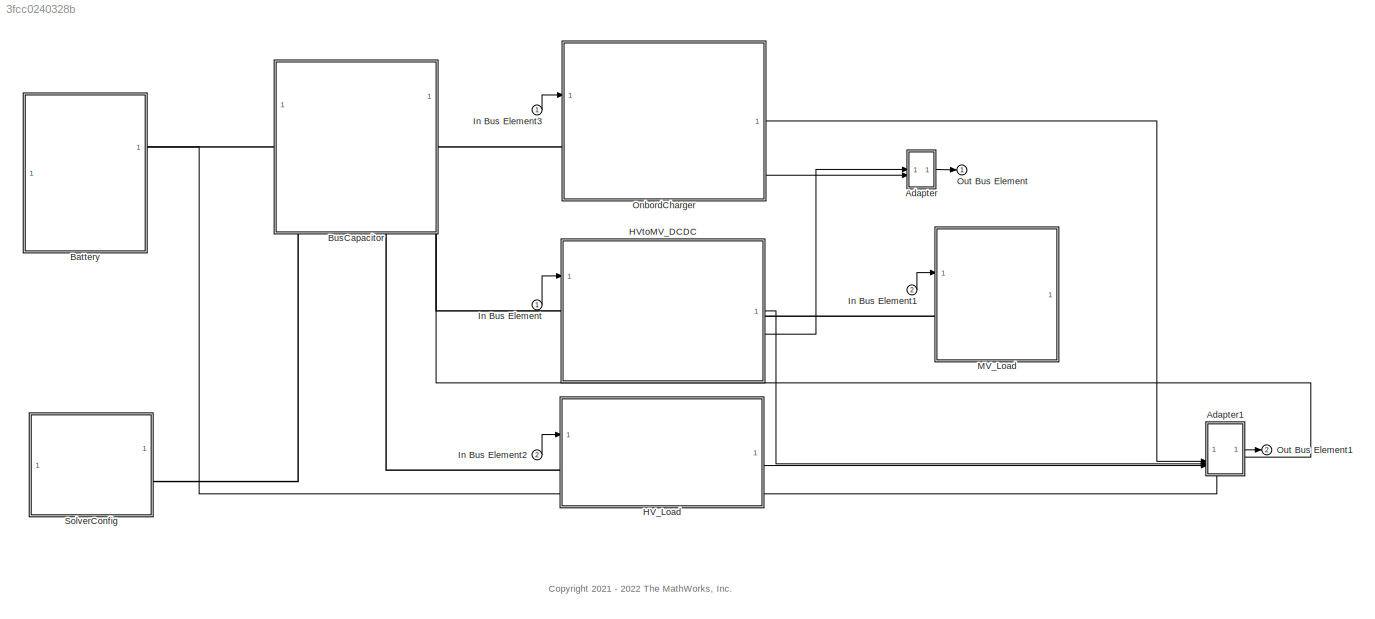
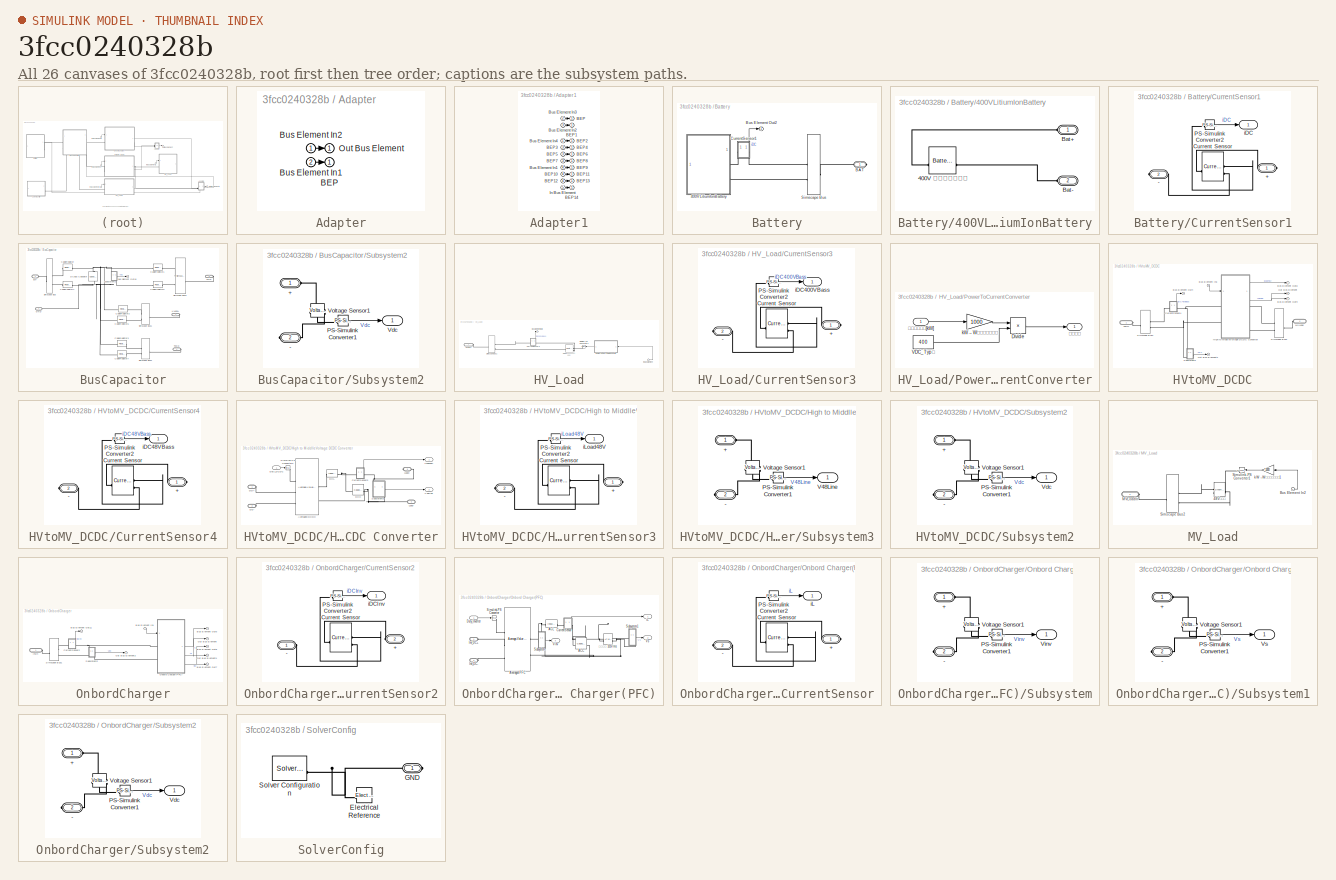
[diagram: thumbnail index - all 26 canvases of the model, root first then tree order]
MODEL slx_3fcc0240328b
KIND model
BLOCK [SubSystem] Adapter
  PortSchema = {"entries":[{"content":{"margin":10,"minimumSpacing":15,"sides":[{"content":{"connectorIds":["In2","In1"]},"type":"ConnectorPlacement.EquallySpacedRectSide","uuid":"68f5454e-c2f0-4736-99c3-02080df13840"},{"content":{"connectorIds":["Out1"],"side":"RIGHT"},"type":"ConnectorPlacement.EquallySpacedRectSide","uuid":"5ee879a6-3050-43f8-b648-386fe489b578"},{"content":{"connectorIds":[],"side":"TOP"},"ty...<+278ch>
BLOCK [Outport] Adapter/BEP
BLOCK [Inport] Adapter/Bus Element In1
  Port = 2
BLOCK [Inport] Adapter/Bus Element In2
BLOCK [Outport] Adapter/Out Bus Element
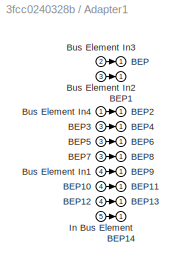
BLOCK [SubSystem] Adapter1
  PortSchema = {"entries":[{"content":{"margin":10,"minimumSpacing":15,"sides":[{"content":{"connectorIds":["In3","In4","In5"]},"type":"ConnectorPlacement.EquallySpacedRectSide","uuid":"68f5454e-c2f0-4736-99c3-02080df13840"},{"content":{"connectorIds":["Out1"],"side":"RIGHT"},"type":"ConnectorPlacement.EquallySpacedRectSide","uuid":"5ee879a6-3050-43f8-b648-386fe489b578"},{"content":{"connectorIds":[],"side":"TOP...<+439ch>
BLOCK [Outport] Adapter1/BEP
BLOCK [Outport] Adapter1/BEP1
BLOCK [Inport] Adapter1/BEP10
  Port = 4
BLOCK [Outport] Adapter1/BEP11
BLOCK [Inport] Adapter1/BEP12
  Port = 4
BLOCK [Outport] Adapter1/BEP13
BLOCK [Outport] Adapter1/BEP14
BLOCK [Outport] Adapter1/BEP2
BLOCK [Inport] Adapter1/BEP3
  Port = 3
BLOCK [Outport] Adapter1/BEP4
BLOCK [Inport] Adapter1/BEP5
  Port = 3
BLOCK [Outport] Adapter1/BEP6
BLOCK [Inport] Adapter1/BEP7
  Port = 3
BLOCK [Outport] Adapter1/BEP8
BLOCK [Outport] Adapter1/BEP9
BLOCK [Inport] Adapter1/Bus Element In1
  Port = 4
BLOCK [Inport] Adapter1/Bus Element In2
  Port = 3
BLOCK [Inport] Adapter1/Bus Element In3
  Port = 2
BLOCK [Inport] Adapter1/Bus Element In4
BLOCK [Inport] Adapter1/In Bus Element
  Port = 5
BLOCK [SubSystem] Battery
  PortSchema = {"entries":[{"content":{"headerSize":26,"margin":15,"minimumSpacing":25,"sides":[{"content":{"connectorIds":[]},"type":"ConnectorPlacement.EquallySpacedRectSide","uuid":"bc9bb9ba-2a95-4d32-9fa4-7976113ef647"},{"content":{"connectorIds":["RConn1","Out1"],"side":"RIGHT"},"type":"ConnectorPlacement.EquallySpacedRectSide","uuid":"964ff6e2-b516-444b-80c9-2869b54c1800"},{"content":{"connectorIds":[],"si...<+292ch>
BLOCK [SubSystem] Battery/400VLitiumIonBattery
BLOCK [Reference] Battery/400VLitiumIonBattery/400V 理想特性蓄電池  REF=batteryecm_lib/Battery
  NameLocation = left
  SourceBlock = batteryecm_lib/Battery
  SourceType = Battery
BLOCK [PMIOPort] Battery/400VLitiumIonBattery/Bat+
  Side = Right
BLOCK [PMIOPort] Battery/400VLitiumIonBattery/Bat-
  Port = 2
  Side = Right
BLOCK [PMIOPort] Battery/BAT
  ConnectionType = Bus: HV_PowerLine
  Side = Right
BLOCK [Outport] Battery/Bus Element Out2
BLOCK [SubSystem] Battery/CurrentSensor1
  PortSchema = {"entries":[{"content":{"sides":[{"content":{"connectorIds":["LConn1"]},"type":"ConnectorPlacement.EquallySpacedRectSide","uuid":"7286f59e-cee0-499d-832c-cf6f33a1b017"},{"content":{"connectorIds":["RConn1"],"side":"RIGHT"},"type":"ConnectorPlacement.EquallySpacedRectSide","uuid":"6a983281-a6bc-4a57-a5ba-c4da9a8828f4"},{"content":{"connectorIds":["Out1"],"side":"TOP"},"type":"ConnectorPlacement.Equ...<+251ch>  <repeated x6 — deduplicated; at blocks: CurrentSensor1, CurrentSensor3, CurrentSensor4, CurrentSensor2, CurrentSensor>
BLOCK [PMIOPort] Battery/CurrentSensor1/+
  Side = Left
BLOCK [PMIOPort] Battery/CurrentSensor1/-
  Port = 2
  Side = Right
BLOCK [Reference] Battery/CurrentSensor1/Current Sensor  REF=fl_lib/Electrical/Electrical Sensors/Current Sensor
  NameLocation = top
  SourceBlock = fl_lib/Electrical/Electrical Sensors/Current Sensor
  SourceType = Current Sensor
BLOCK [Reference] Battery/CurrentSensor1/PS-Simulink Converter2  REF=nesl_utility/PS-Simulink
Converter
  SourceBlock = nesl_utility/PS-Simulink\nConverter
  SourceType = PS-Simulink\nConverter
BLOCK [Outport] Battery/CurrentSensor1/iDC
BLOCK [SimscapeBus] Battery/Simscape Bus
  ConnectionType = Bus: HV_PowerLine
  HierarchyStrings = P;N
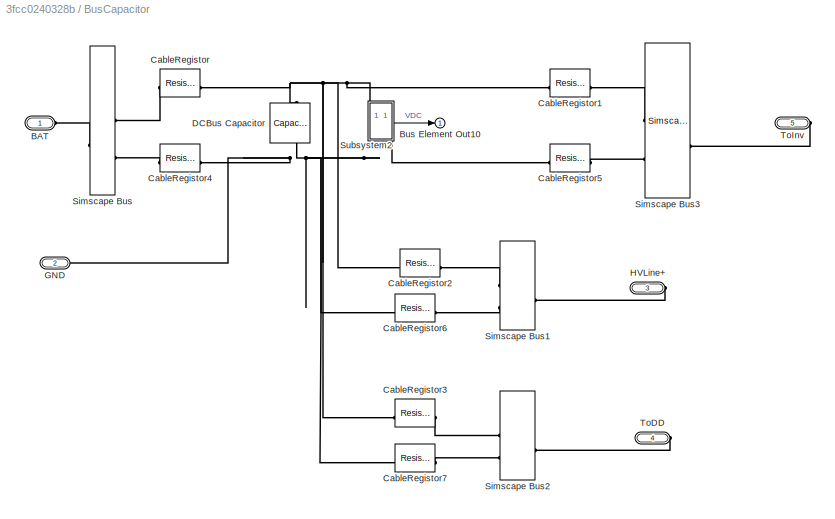
BLOCK [SubSystem] BusCapacitor
  PortSchema = {"entries":[{"content":{"headerSize":26,"margin":15,"minimumSpacing":25,"sides":[{"content":{"connectorIds":["LConn1"]},"type":"ConnectorPlacement.EquallySpacedRectSide","uuid":"bc9bb9ba-2a95-4d32-9fa4-7976113ef647"},{"content":{"connectorIds":["RConn3"],"side":"RIGHT"},"type":"ConnectorPlacement.EquallySpacedRectSide","uuid":"964ff6e2-b516-444b-80c9-2869b54c1800"},{"content":{"connectorIds":[],"s...<+470ch>
BLOCK [PMIOPort] BusCapacitor/BAT
  ConnectionType = Bus: HV_PowerLine
  Side = Left
BLOCK [Outport] BusCapacitor/Bus Element Out10
BLOCK [Reference] BusCapacitor/CableRegistor  REF=fl_lib/Electrical/Electrical Elements/Resistor
  NameLocation = top
  SourceBlock = fl_lib/Electrical/Electrical Elements/Resistor
  SourceType = Resistor
BLOCK [Reference] BusCapacitor/CableRegistor1  REF=fl_lib/Electrical/Electrical Elements/Resistor
  NameLocation = top
  SourceBlock = fl_lib/Electrical/Electrical Elements/Resistor
  SourceType = Resistor
BLOCK [Reference] BusCapacitor/CableRegistor2  REF=fl_lib/Electrical/Electrical Elements/Resistor
  NameLocation = top
  SourceBlock = fl_lib/Electrical/Electrical Elements/Resistor
  SourceType = Resistor
BLOCK [Reference] BusCapacitor/CableRegistor3  REF=fl_lib/Electrical/Electrical Elements/Resistor
  NameLocation = top
  SourceBlock = fl_lib/Electrical/Electrical Elements/Resistor
  SourceType = Resistor
BLOCK [Reference] BusCapacitor/CableRegistor4  REF=fl_lib/Electrical/Electrical Elements/Resistor
  NameLocation = top
  SourceBlock = fl_lib/Electrical/Electrical Elements/Resistor
  SourceType = Resistor
BLOCK [Reference] BusCapacitor/CableRegistor5  REF=fl_lib/Electrical/Electrical Elements/Resistor
  NameLocation = top
  SourceBlock = fl_lib/Electrical/Electrical Elements/Resistor
  SourceType = Resistor
BLOCK [Reference] BusCapacitor/CableRegistor6  REF=fl_lib/Electrical/Electrical Elements/Resistor
  NameLocation = top
  SourceBlock = fl_lib/Electrical/Electrical Elements/Resistor
  SourceType = Resistor
BLOCK [Reference] BusCapacitor/CableRegistor7  REF=fl_lib/Electrical/Electrical Elements/Resistor
  NameLocation = top
  SourceBlock = fl_lib/Electrical/Electrical Elements/Resistor
  SourceType = Resistor
BLOCK [Reference] BusCapacitor/DCBus Capacitor  REF=ee_lib/Passive/Capacitor
  NameLocation = left
  SourceBlock = ee_lib/Passive/Capacitor
  SourceType = Capacitor
BLOCK [PMIOPort] BusCapacitor/GND
  Port = 2
  Side = Left
BLOCK [PMIOPort] BusCapacitor/HVLine+
  ConnectionType = Bus: HV_PowerLine
  Port = 3
  Side = Right
BLOCK [SimscapeBus] BusCapacitor/Simscape Bus
  ConnectionType = Bus: HV_PowerLine
  HierarchyStrings = P;N
  NameLocation = top
BLOCK [SimscapeBus] BusCapacitor/Simscape Bus1
  ConnectionType = Bus: HV_PowerLine
  HierarchyStrings = P;N
BLOCK [SimscapeBus] BusCapacitor/Simscape Bus2
  ConnectionType = Bus: HV_PowerLine
  HierarchyStrings = P;N
BLOCK [SimscapeBus] BusCapacitor/Simscape Bus3
  ConnectionType = Bus: HV_PowerLine
  HierarchyStrings = P;N
BLOCK [SubSystem] BusCapacitor/Subsystem2
  PortSchema = {"entries":[{"content":{"sides":[{"content":{"connectorIds":[]},"type":"ConnectorPlacement.EquallySpacedRectSide","uuid":"7286f59e-cee0-499d-832c-cf6f33a1b017"},{"content":{"connectorIds":["Out1"],"side":"RIGHT"},"type":"ConnectorPlacement.EquallySpacedRectSide","uuid":"6a983281-a6bc-4a57-a5ba-c4da9a8828f4"},{"content":{"connectorIds":["LConn1"],"side":"TOP"},"type":"ConnectorPlacement.EquallySpac...<+395ch>  <repeated x6 — deduplicated; at blocks: Subsystem2, Subsystem3, Subsystem, Subsystem1>
BLOCK [PMIOPort] BusCapacitor/Subsystem2/+
  Side = Left
BLOCK [PMIOPort] BusCapacitor/Subsystem2/-
  NameLocation = top
  Port = 2
  Side = Right
BLOCK [Reference] BusCapacitor/Subsystem2/PS-Simulink Converter1  REF=nesl_utility/PS-Simulink
Converter
  SourceBlock = nesl_utility/PS-Simulink\nConverter
  SourceType = PS-Simulink\nConverter
BLOCK [Outport] BusCapacitor/Subsystem2/Vdc
BLOCK [Reference] BusCapacitor/Subsystem2/Voltage Sensor1  REF=fl_lib/Electrical/Electrical Sensors/Voltage Sensor
  NameLocation = right
  SourceBlock = fl_lib/Electrical/Electrical Sensors/Voltage Sensor
  SourceType = Voltage Sensor
BLOCK [PMIOPort] BusCapacitor/ToDD
  ConnectionType = Bus: HV_PowerLine
  Port = 4
  Side = Right
BLOCK [PMIOPort] BusCapacitor/ToInv
  ConnectionType = Bus: HV_PowerLine
  Port = 5
  Side = Right
BLOCK [SubSystem] HV_Load
  PortSchema = {"entries":[{"content":{"headerSize":26,"margin":15,"minimumSpacing":25,"sides":[{"content":{"connectorIds":["In1","LConn1"]},"type":"ConnectorPlacement.EquallySpacedRectSide","uuid":"bc9bb9ba-2a95-4d32-9fa4-7976113ef647"},{"content":{"connectorIds":["Out1"],"side":"RIGHT"},"type":"ConnectorPlacement.EquallySpacedRectSide","uuid":"964ff6e2-b516-444b-80c9-2869b54c1800"},{"content":{"connectorIds":[...<+297ch>
BLOCK [Reference] HV_Load/400V系負荷を模擬する 電流源  REF=fl_lib/Electrical/Electrical Sources/Controlled Current
Source
  NameLocation = left
  SourceBlock = fl_lib/Electrical/Electrical Sources/Controlled Current\nSource
  SourceType = Controlled Current\nSource
BLOCK [Outport] HV_Load/Bus Element Out3
BLOCK [SubSystem] HV_Load/CurrentSensor3
BLOCK [PMIOPort] HV_Load/CurrentSensor3/+
  Side = Left
BLOCK [PMIOPort] HV_Load/CurrentSensor3/-
  Port = 2
  Side = Right
BLOCK [Reference] HV_Load/CurrentSensor3/Current Sensor  REF=fl_lib/Electrical/Electrical Sensors/Current Sensor
  NameLocation = top
  SourceBlock = fl_lib/Electrical/Electrical Sensors/Current Sensor
  SourceType = Current Sensor
BLOCK [Reference] HV_Load/CurrentSensor3/PS-Simulink Converter2  REF=nesl_utility/PS-Simulink
Converter
  SourceBlock = nesl_utility/PS-Simulink\nConverter
  SourceType = PS-Simulink\nConverter
BLOCK [Outport] HV_Load/CurrentSensor3/iDC400VBass
BLOCK [PMIOPort] HV_Load/HVLine+
  ConnectionType = Bus: HV_PowerLine
  Side = Left
BLOCK [Inport] HV_Load/In Bus Element
BLOCK [SubSystem] HV_Load/PowerToCurrentConverter
  NameLocation = top
BLOCK [Product] HV_Load/PowerToCurrentConverter/Divide
  Inputs = */
BLOCK [Constant] HV_Load/PowerToCurrentConverter/VDC_Typ値
  Value = 400
BLOCK [Gain] HV_Load/PowerToCurrentConverter/kW→W単位変換ゲイン
  Gain = 1000
  NameLocation = top
BLOCK [Inport] HV_Load/PowerToCurrentConverter/消費負荷電力[kW]
  NameLocation = top
BLOCK [Outport] HV_Load/PowerToCurrentConverter/負荷電流
  NameLocation = top
BLOCK [SimscapeBus] HV_Load/Simscape Bus1
  ConnectionType = Bus: HV_PowerLine
  HierarchyStrings = P;N
  NameLocation = top
BLOCK [Reference] HV_Load/Simulink-PS Converter2  REF=nesl_utility/Simulink-PS
Converter
  SourceBlock = nesl_utility/Simulink-PS\nConverter
  SourceType = Simulink-PS\nConverter
BLOCK [SubSystem] HVtoMV_DCDC
  PortSchema = {"entries":[{"content":{"headerSize":26,"margin":15,"minimumSpacing":25,"sides":[{"content":{"connectorIds":["In1","LConn1"]},"type":"ConnectorPlacement.EquallySpacedRectSide","uuid":"bc9bb9ba-2a95-4d32-9fa4-7976113ef647"},{"content":{"connectorIds":["Out2","LConn2","Out1"],"side":"RIGHT"},"type":"ConnectorPlacement.EquallySpacedRectSide","uuid":"964ff6e2-b516-444b-80c9-2869b54c1800"},{"content":{...<+313ch>
BLOCK [Inport] HVtoMV_DCDC/Bus Element In3
BLOCK [Outport] HVtoMV_DCDC/Bus Element Out4
BLOCK [Outport] HVtoMV_DCDC/Bus Element Out8
BLOCK [Outport] HVtoMV_DCDC/Bus Element Out9
BLOCK [SubSystem] HVtoMV_DCDC/CurrentSensor4
BLOCK [PMIOPort] HVtoMV_DCDC/CurrentSensor4/+
  Side = Left
BLOCK [PMIOPort] HVtoMV_DCDC/CurrentSensor4/-
  Port = 2
  Side = Right
BLOCK [Reference] HVtoMV_DCDC/CurrentSensor4/Current Sensor  REF=fl_lib/Electrical/Electrical Sensors/Current Sensor
  NameLocation = top
  SourceBlock = fl_lib/Electrical/Electrical Sensors/Current Sensor
  SourceType = Current Sensor
BLOCK [Reference] HVtoMV_DCDC/CurrentSensor4/PS-Simulink Converter2  REF=nesl_utility/PS-Simulink
Converter
  SourceBlock = nesl_utility/PS-Simulink\nConverter
  SourceType = PS-Simulink\nConverter
BLOCK [Outport] HVtoMV_DCDC/CurrentSensor4/iDC48VBass
BLOCK [SubSystem] HVtoMV_DCDC/High to MiddlleVoltage DCDC Converter
BLOCK [Reference] HVtoMV_DCDC/High to MiddlleVoltage DCDC Converter/Averaged DCDC  REF=ee_lib/Semiconductors &
Converters/Converters/Average-Value
Chopper
  SourceBlock = ee_lib/Semiconductors &\nConverters/Converters/Average-Value\nChopper
  SourceType = Average-Value\nChopper
BLOCK [SubSystem] HVtoMV_DCDC/High to MiddlleVoltage DCDC Converter/CurrentSensor3
BLOCK [PMIOPort] HVtoMV_DCDC/High to MiddlleVoltage DCDC Converter/CurrentSensor3/+
  Side = Left
BLOCK [PMIOPort] HVtoMV_DCDC/High to MiddlleVoltage DCDC Converter/CurrentSensor3/-
  Port = 2
  Side = Right
BLOCK [Reference] HVtoMV_DCDC/High to MiddlleVoltage DCDC Converter/CurrentSensor3/Current Sensor  REF=fl_lib/Electrical/Electrical Sensors/Current Sensor
  NameLocation = top
  SourceBlock = fl_lib/Electrical/Electrical Sensors/Current Sensor
  SourceType = Current Sensor
BLOCK [Reference] HVtoMV_DCDC/High to MiddlleVoltage DCDC Converter/CurrentSensor3/PS-Simulink Converter2  REF=nesl_utility/PS-Simulink
Converter
  SourceBlock = nesl_utility/PS-Simulink\nConverter
  SourceType = PS-Simulink\nConverter
BLOCK [Outport] HVtoMV_DCDC/High to MiddlleVoltage DCDC Converter/CurrentSensor3/iLoad48V
BLOCK [Reference] HVtoMV_DCDC/High to MiddlleVoltage DCDC Converter/DCC  REF=ee_lib/Passive/Capacitor
  NameLocation = left
  SourceBlock = ee_lib/Passive/Capacitor
  SourceType = Capacitor
BLOCK [Reference] HVtoMV_DCDC/High to MiddlleVoltage DCDC Converter/DCL  REF=ee_lib/Passive/Inductor
  SourceBlock = ee_lib/Passive/Inductor
  SourceType = Inductor
BLOCK [PMIOPort] HVtoMV_DCDC/High to MiddlleVoltage DCDC Converter/DD+
  Side = Left
BLOCK [PMIOPort] HVtoMV_DCDC/High to MiddlleVoltage DCDC Converter/DD-
  Port = 2
  Side = Left
BLOCK [Inport] HVtoMV_DCDC/High to MiddlleVoltage DCDC Converter/Duty_DCDC
BLOCK [PMIOPort] HVtoMV_DCDC/High to MiddlleVoltage DCDC Converter/Load+
  NameLocation = top
  Port = 3
  Side = Right
BLOCK [PMIOPort] HVtoMV_DCDC/High to MiddlleVoltage DCDC Converter/Load-
  NameLocation = top
  Port = 4
  Side = Right
BLOCK [Reference] HVtoMV_DCDC/High to MiddlleVoltage DCDC Converter/Simulink-PS Converter2  REF=nesl_utility/Simulink-PS
Converter
  SourceBlock = nesl_utility/Simulink-PS\nConverter
  SourceType = Simulink-PS\nConverter
BLOCK [SubSystem] HVtoMV_DCDC/High to MiddlleVoltage DCDC Converter/Subsystem3
BLOCK [PMIOPort] HVtoMV_DCDC/High to MiddlleVoltage DCDC Converter/Subsystem3/+
  Side = Left
BLOCK [PMIOPort] HVtoMV_DCDC/High to MiddlleVoltage DCDC Converter/Subsystem3/-
  NameLocation = top
  Port = 2
  Side = Right
BLOCK [Reference] HVtoMV_DCDC/High to MiddlleVoltage DCDC Converter/Subsystem3/PS-Simulink Converter1  REF=nesl_utility/PS-Simulink
Converter
  SourceBlock = nesl_utility/PS-Simulink\nConverter
  SourceType = PS-Simulink\nConverter
BLOCK [Outport] HVtoMV_DCDC/High to MiddlleVoltage DCDC Converter/Subsystem3/V48Line
BLOCK [Reference] HVtoMV_DCDC/High to MiddlleVoltage DCDC Converter/Subsystem3/Voltage Sensor1  REF=fl_lib/Electrical/Electrical Sensors/Voltage Sensor
  NameLocation = right
  SourceBlock = fl_lib/Electrical/Electrical Sensors/Voltage Sensor
  SourceType = Voltage Sensor
BLOCK [Outport] HVtoMV_DCDC/High to MiddlleVoltage DCDC Converter/V48Line
  Port = 2
BLOCK [Outport] HVtoMV_DCDC/High to MiddlleVoltage DCDC Converter/iLoad48V
BLOCK [PMIOPort] HVtoMV_DCDC/MVLoad
  ConnectionType = Bus: MV_PowerLine
  NameLocation = top
  Port = 2
  Side = Left
BLOCK [Outport] HVtoMV_DCDC/Out Bus Element
  Port = 2
BLOCK [Outport] HVtoMV_DCDC/Out Bus Element1
  Port = 2
BLOCK [SimscapeBus] HVtoMV_DCDC/Simscape Bus1
  ConnectionType = Bus: HV_PowerLine
  HierarchyStrings = P;N
  NameLocation = top
BLOCK [SimscapeBus] HVtoMV_DCDC/Simscape Bus2
  ConnectionType = Bus: MV_PowerLine
  HierarchyStrings = P;N
BLOCK [SubSystem] HVtoMV_DCDC/Subsystem2
BLOCK [PMIOPort] HVtoMV_DCDC/Subsystem2/+
  Side = Left
BLOCK [PMIOPort] HVtoMV_DCDC/Subsystem2/-
  NameLocation = top
  Port = 2
  Side = Right
BLOCK [Reference] HVtoMV_DCDC/Subsystem2/PS-Simulink Converter1  REF=nesl_utility/PS-Simulink
Converter
  SourceBlock = nesl_utility/PS-Simulink\nConverter
  SourceType = PS-Simulink\nConverter
BLOCK [Outport] HVtoMV_DCDC/Subsystem2/Vdc
BLOCK [Reference] HVtoMV_DCDC/Subsystem2/Voltage Sensor1  REF=fl_lib/Electrical/Electrical Sensors/Voltage Sensor
  NameLocation = right
  SourceBlock = fl_lib/Electrical/Electrical Sensors/Voltage Sensor
  SourceType = Voltage Sensor
BLOCK [PMIOPort] HVtoMV_DCDC/ToDD
  ConnectionType = Bus: HV_PowerLine
  Side = Left
BLOCK [Inport] In Bus Element
BLOCK [Inport] In Bus Element1
  Port = 2
BLOCK [Inport] In Bus Element2
  Port = 2
BLOCK [Inport] In Bus Element3
BLOCK [SubSystem] MV_Load
  PortSchema = {"entries":[{"content":{"headerSize":26,"margin":15,"minimumSpacing":25,"sides":[{"content":{"connectorIds":["In1","LConn1"]},"type":"ConnectorPlacement.EquallySpacedRectSide","uuid":"bc9bb9ba-2a95-4d32-9fa4-7976113ef647"},{"content":{"connectorIds":[],"side":"RIGHT"},"type":"ConnectorPlacement.EquallySpacedRectSide","uuid":"964ff6e2-b516-444b-80c9-2869b54c1800"},{"content":{"connectorIds":[],"sid...<+291ch>
BLOCK [Reference] MV_Load/48V系負荷  REF=ee_lib/Passive/Dynamic Load
  SourceBlock = ee_lib/Passive/Dynamic Load
  SourceType = Dynamic Load
BLOCK [Inport] MV_Load/Bus Element In2
BLOCK [PMIOPort] MV_Load/MVLoadIn
  ConnectionType = Bus: MV_PowerLine
  Side = Left
BLOCK [SimscapeBus] MV_Load/Simscape Bus2
  ConnectionType = Bus: MV_PowerLine
  HierarchyStrings = P;N
  NameLocation = top
BLOCK [Reference] MV_Load/Simulink-PS Converter1  REF=nesl_utility/Simulink-PS
Converter
  SourceBlock = nesl_utility/Simulink-PS\nConverter
  SourceType = Simulink-PS\nConverter
BLOCK [Gain] MV_Load/kW→W単位変換ゲイン1
  Gain = 1000
  NameLocation = top
BLOCK [SubSystem] OnbordCharger
  PortSchema = {"entries":[{"content":{"headerSize":26,"margin":15,"minimumSpacing":25,"sides":[{"content":{"connectorIds":["In1","LConn1"]},"type":"ConnectorPlacement.EquallySpacedRectSide","uuid":"bc9bb9ba-2a95-4d32-9fa4-7976113ef647"},{"content":{"connectorIds":["Out1","Out2"],"side":"RIGHT"},"type":"ConnectorPlacement.EquallySpacedRectSide","uuid":"964ff6e2-b516-444b-80c9-2869b54c1800"},{"content":{"connecto...<+304ch>
BLOCK [Inport] OnbordCharger/Bus Element In1
BLOCK [Outport] OnbordCharger/Bus Element Out11
BLOCK [Outport] OnbordCharger/Bus Element Out5
BLOCK [Outport] OnbordCharger/Bus Element Out6
BLOCK [Outport] OnbordCharger/Bus Element Out7
BLOCK [SubSystem] OnbordCharger/CurrentSensor2
BLOCK [PMIOPort] OnbordCharger/CurrentSensor2/+
  Port = 2
  Side = Right
BLOCK [PMIOPort] OnbordCharger/CurrentSensor2/-
  Side = Left
BLOCK [Reference] OnbordCharger/CurrentSensor2/Current Sensor  REF=fl_lib/Electrical/Electrical Sensors/Current Sensor
  NameLocation = top
  SourceBlock = fl_lib/Electrical/Electrical Sensors/Current Sensor
  SourceType = Current Sensor
BLOCK [Reference] OnbordCharger/CurrentSensor2/PS-Simulink Converter2  REF=nesl_utility/PS-Simulink
Converter
  SourceBlock = nesl_utility/PS-Simulink\nConverter
  SourceType = PS-Simulink\nConverter
BLOCK [Outport] OnbordCharger/CurrentSensor2/iDCInv
BLOCK [PMIOPort] OnbordCharger/InvIn
  ConnectionType = Bus: HV_PowerLine
  Side = Left
BLOCK [SubSystem] OnbordCharger/Onbord Charger(PFC)
BLOCK [Reference] OnbordCharger/Onbord Charger(PFC)/ACC  REF=ee_lib/Passive/Capacitor
  NameLocation = right
  SourceBlock = ee_lib/Passive/Capacitor
  SourceType = Capacitor
BLOCK [Reference] OnbordCharger/Onbord Charger(PFC)/ACL  REF=ee_lib/Passive/Inductor
  SourceBlock = ee_lib/Passive/Inductor
  SourceType = Inductor
BLOCK [Reference] OnbordCharger/Onbord Charger(PFC)/Averaged PFC  REF=ee_lib/Semiconductors &
Converters/Converters/Average-Value
Chopper
  SourceBlock = ee_lib/Semiconductors &\nConverters/Converters/Average-Value\nChopper
  SourceType = Average-Value\nChopper
BLOCK [SubSystem] OnbordCharger/Onbord Charger(PFC)/CurrentSensor
BLOCK [PMIOPort] OnbordCharger/Onbord Charger(PFC)/CurrentSensor/+
  Side = Left
BLOCK [PMIOPort] OnbordCharger/Onbord Charger(PFC)/CurrentSensor/-
  Port = 2
  Side = Right
BLOCK [Reference] OnbordCharger/Onbord Charger(PFC)/CurrentSensor/Current Sensor  REF=fl_lib/Electrical/Electrical Sensors/Current Sensor
  NameLocation = top
  SourceBlock = fl_lib/Electrical/Electrical Sensors/Current Sensor
  SourceType = Current Sensor
BLOCK [Reference] OnbordCharger/Onbord Charger(PFC)/CurrentSensor/PS-Simulink Converter2  REF=nesl_utility/PS-Simulink
Converter
  SourceBlock = nesl_utility/PS-Simulink\nConverter
  SourceType = PS-Simulink\nConverter
BLOCK [Outport] OnbordCharger/Onbord Charger(PFC)/CurrentSensor/iL
BLOCK [Inport] OnbordCharger/Onbord Charger(PFC)/Duty_Inverter
BLOCK [PMIOPort] OnbordCharger/Onbord Charger(PFC)/Inv_DC+
  Side = Left
BLOCK [PMIOPort] OnbordCharger/Onbord Charger(PFC)/Inv_DC-
  Port = 2
  Side = Left
BLOCK [Reference] OnbordCharger/Onbord Charger(PFC)/Simulink-PS Converter  REF=nesl_utility/Simulink-PS
Converter
  SourceBlock = nesl_utility/Simulink-PS\nConverter
  SourceType = Simulink-PS\nConverter
BLOCK [SubSystem] OnbordCharger/Onbord Charger(PFC)/Subsystem
BLOCK [PMIOPort] OnbordCharger/Onbord Charger(PFC)/Subsystem/+
  Side = Left
BLOCK [PMIOPort] OnbordCharger/Onbord Charger(PFC)/Subsystem/-
  NameLocation = top
  Port = 2
  Side = Right
BLOCK [Reference] OnbordCharger/Onbord Charger(PFC)/Subsystem/PS-Simulink Converter1  REF=nesl_utility/PS-Simulink
Converter
  SourceBlock = nesl_utility/PS-Simulink\nConverter
  SourceType = PS-Simulink\nConverter
BLOCK [Outport] OnbordCharger/Onbord Charger(PFC)/Subsystem/Vinv
BLOCK [Reference] OnbordCharger/Onbord Charger(PFC)/Subsystem/Voltage Sensor1  REF=fl_lib/Electrical/Electrical Sensors/Voltage Sensor
  NameLocation = right
  SourceBlock = fl_lib/Electrical/Electrical Sensors/Voltage Sensor
  SourceType = Voltage Sensor
BLOCK [SubSystem] OnbordCharger/Onbord Charger(PFC)/Subsystem1
BLOCK [PMIOPort] OnbordCharger/Onbord Charger(PFC)/Subsystem1/+
  Side = Left
BLOCK [PMIOPort] OnbordCharger/Onbord Charger(PFC)/Subsystem1/-
  NameLocation = top
  Port = 2
  Side = Right
BLOCK [Reference] OnbordCharger/Onbord Charger(PFC)/Subsystem1/PS-Simulink Converter1  REF=nesl_utility/PS-Simulink
Converter
  SourceBlock = nesl_utility/PS-Simulink\nConverter
  SourceType = PS-Simulink\nConverter
BLOCK [Reference] OnbordCharger/Onbord Charger(PFC)/Subsystem1/Voltage Sensor1  REF=fl_lib/Electrical/Electrical Sensors/Voltage Sensor
  NameLocation = right
  SourceBlock = fl_lib/Electrical/Electrical Sensors/Voltage Sensor
  SourceType = Voltage Sensor
BLOCK [Outport] OnbordCharger/Onbord Charger(PFC)/Subsystem1/Vs
BLOCK [Outport] OnbordCharger/Onbord Charger(PFC)/Vinv
  Port = 3
BLOCK [Outport] OnbordCharger/Onbord Charger(PFC)/Vs
  Port = 2
BLOCK [Outport] OnbordCharger/Onbord Charger(PFC)/iL
BLOCK [Reference] OnbordCharger/Onbord Charger(PFC)/系統電圧 101Vrms  REF=fl_lib/Electrical/Electrical Sources/AC Voltage Source
  NameLocation = right
  SourceBlock = fl_lib/Electrical/Electrical Sources/AC Voltage Source
  SourceType = AC Voltage Source
BLOCK [Outport] OnbordCharger/Out Bus Element
  Port = 2
BLOCK [Outport] OnbordCharger/Out Bus Element1
  Port = 2
BLOCK [Outport] OnbordCharger/Out Bus Element2
  Port = 2
BLOCK [SimscapeBus] OnbordCharger/Simscape Bus1
  ConnectionType = Bus: HV_PowerLine
  HierarchyStrings = P;N
  NameLocation = top
BLOCK [SubSystem] OnbordCharger/Subsystem2
BLOCK [PMIOPort] OnbordCharger/Subsystem2/+
  Side = Left
BLOCK [PMIOPort] OnbordCharger/Subsystem2/-
  NameLocation = top
  Port = 2
  Side = Right
BLOCK [Reference] OnbordCharger/Subsystem2/PS-Simulink Converter1  REF=nesl_utility/PS-Simulink
Converter
  SourceBlock = nesl_utility/PS-Simulink\nConverter
  SourceType = PS-Simulink\nConverter
BLOCK [Outport] OnbordCharger/Subsystem2/Vdc
BLOCK [Reference] OnbordCharger/Subsystem2/Voltage Sensor1  REF=fl_lib/Electrical/Electrical Sensors/Voltage Sensor
  NameLocation = right
  SourceBlock = fl_lib/Electrical/Electrical Sensors/Voltage Sensor
  SourceType = Voltage Sensor
BLOCK [Outport] Out Bus Element
BLOCK [Outport] Out Bus Element1
  Port = 2
BLOCK [SubSystem] SolverConfig
  PortSchema = {"entries":[{"content":{"headerSize":26,"margin":15,"minimumSpacing":25,"sides":[{"content":{"connectorIds":[]},"type":"ConnectorPlacement.EquallySpacedRectSide","uuid":"bc9bb9ba-2a95-4d32-9fa4-7976113ef647"},{"content":{"connectorIds":["RConn1"],"side":"RIGHT"},"type":"ConnectorPlacement.EquallySpacedRectSide","uuid":"964ff6e2-b516-444b-80c9-2869b54c1800"},{"content":{"connectorIds":[],"side":"TO...<+285ch>
BLOCK [Reference] SolverConfig/Electrical Reference  REF=fl_lib/Electrical/Electrical Elements/Electrical Reference
  SourceBlock = fl_lib/Electrical/Electrical Elements/Electrical Reference
  SourceType = Electrical Reference
BLOCK [PMIOPort] SolverConfig/GND
  Side = Right
BLOCK [Reference] SolverConfig/Solver Configuration  REF=nesl_utility/Solver
Configuration
  SourceBlock = nesl_utility/Solver\nConfiguration
  SourceType = Solver\nConfiguration
ANNOTATION (root): <copyright redacted>
LINE Adapter/Bus Element In1:1 -> Adapter/BEP:1
LINE Adapter/Bus Element In2:1 -> Adapter/Out Bus Element:1
LINE Adapter1/BEP10:1 -> Adapter1/BEP11:1
LINE Adapter1/BEP12:1 -> Adapter1/BEP13:1
LINE Adapter1/BEP3:1 -> Adapter1/BEP4:1
LINE Adapter1/BEP5:1 -> Adapter1/BEP6:1
LINE Adapter1/BEP7:1 -> Adapter1/BEP8:1
LINE Adapter1/Bus Element In1:1 -> Adapter1/BEP9:1
LINE Adapter1/Bus Element In2:1 -> Adapter1/BEP1:1
LINE Adapter1/Bus Element In3:1 -> Adapter1/BEP:1
LINE Adapter1/Bus Element In4:1 -> Adapter1/BEP2:1
LINE Adapter1/In Bus Element:1 -> Adapter1/BEP14:1
LINE Adapter1:1 -> Out Bus Element1:1
LINE Adapter:1 -> Out Bus Element:1
LINE Battery/CurrentSensor1/PS-Simulink Converter2:1 -> Battery/CurrentSensor1/iDC:1
LINE Battery/CurrentSensor1:1 -> Battery/Bus Element Out2:1
LINE Battery:1 -> Adapter1:1
LINE BusCapacitor/Subsystem2/PS-Simulink Converter1:1 -> BusCapacitor/Subsystem2/Vdc:1
LINE BusCapacitor/Subsystem2:1 -> BusCapacitor/Bus Element Out10:1
LINE BusCapacitor:1 -> Adapter1:2
LINE HV_Load/CurrentSensor3/PS-Simulink Converter2:1 -> HV_Load/CurrentSensor3/iDC400VBass:1
LINE HV_Load/CurrentSensor3:1 -> HV_Load/Bus Element Out3:1
LINE HV_Load/In Bus Element:1 -> HV_Load/PowerToCurrentConverter:1
LINE HV_Load/PowerToCurrentConverter/Divide:1 -> HV_Load/PowerToCurrentConverter/負荷電流:1
LINE HV_Load/PowerToCurrentConverter/VDC_Typ値:1 -> HV_Load/PowerToCurrentConverter/Divide:2
LINE HV_Load/PowerToCurrentConverter/kW→W単位変換ゲイン:1 -> HV_Load/PowerToCurrentConverter/Divide:1
LINE HV_Load/PowerToCurrentConverter/消費負荷電力[kW]:1 -> HV_Load/PowerToCurrentConverter/kW→W単位変換ゲイン:1
LINE HV_Load/PowerToCurrentConverter:1 -> HV_Load/Simulink-PS Converter2:1
LINE HV_Load:1 -> Adapter1:5
LINE HVtoMV_DCDC/Bus Element In3:1 -> HVtoMV_DCDC/High to MiddlleVoltage DCDC Converter:1
LINE HVtoMV_DCDC/CurrentSensor4/PS-Simulink Converter2:1 -> HVtoMV_DCDC/CurrentSensor4/iDC48VBass:1
LINE HVtoMV_DCDC/CurrentSensor4:1 -> HVtoMV_DCDC/Bus Element Out4:1
LINE HVtoMV_DCDC/High to MiddlleVoltage DCDC Converter/CurrentSensor3/PS-Simulink Converter2:1 -> HVtoMV_DCDC/High to MiddlleVoltage DCDC Converter/CurrentSensor3/iLoad48V:1
LINE HVtoMV_DCDC/High to MiddlleVoltage DCDC Converter/CurrentSensor3:1 -> HVtoMV_DCDC/High to MiddlleVoltage DCDC Converter/iLoad48V:1
LINE HVtoMV_DCDC/High to MiddlleVoltage DCDC Converter/Duty_DCDC:1 -> HVtoMV_DCDC/High to MiddlleVoltage DCDC Converter/Simulink-PS Converter2:1
LINE HVtoMV_DCDC/High to MiddlleVoltage DCDC Converter/Subsystem3/PS-Simulink Converter1:1 -> HVtoMV_DCDC/High to MiddlleVoltage DCDC Converter/Subsystem3/V48Line:1
LINE HVtoMV_DCDC/High to MiddlleVoltage DCDC Converter/Subsystem3:1 -> HVtoMV_DCDC/High to MiddlleVoltage DCDC Converter/V48Line:1
LINE HVtoMV_DCDC/High to MiddlleVoltage DCDC Converter:1 -> HVtoMV_DCDC/Bus Element Out8:1
NET HVtoMV_DCDC/High to MiddlleVoltage DCDC Converter:2 -> HVtoMV_DCDC/Bus Element Out9:1, HVtoMV_DCDC/Out Bus Element:1
LINE HVtoMV_DCDC/Subsystem2/PS-Simulink Converter1:1 -> HVtoMV_DCDC/Subsystem2/Vdc:1
LINE HVtoMV_DCDC/Subsystem2:1 -> HVtoMV_DCDC/Out Bus Element1:1
LINE HVtoMV_DCDC:1 -> Adapter1:4
LINE HVtoMV_DCDC:2 -> Adapter:1
LINE In Bus Element1:1 -> MV_Load:1
LINE In Bus Element2:1 -> HV_Load:1
LINE In Bus Element3:1 -> OnbordCharger:1
LINE In Bus Element:1 -> HVtoMV_DCDC:1
LINE MV_Load/Bus Element In2:1 -> MV_Load/kW→W単位変換ゲイン1:1
LINE MV_Load/kW→W単位変換ゲイン1:1 -> MV_Load/Simulink-PS Converter1:1
LINE OnbordCharger/Bus Element In1:1 -> OnbordCharger/Onbord Charger(PFC):1
LINE OnbordCharger/CurrentSensor2/PS-Simulink Converter2:1 -> OnbordCharger/CurrentSensor2/iDCInv:1
LINE OnbordCharger/CurrentSensor2:1 -> OnbordCharger/Bus Element Out11:1
LINE OnbordCharger/Onbord Charger(PFC)/CurrentSensor/PS-Simulink Converter2:1 -> OnbordCharger/Onbord Charger(PFC)/CurrentSensor/iL:1
LINE OnbordCharger/Onbord Charger(PFC)/CurrentSensor:1 -> OnbordCharger/Onbord Charger(PFC)/iL:1
LINE OnbordCharger/Onbord Charger(PFC)/Duty_Inverter:1 -> OnbordCharger/Onbord Charger(PFC)/Simulink-PS Converter:1
LINE OnbordCharger/Onbord Charger(PFC)/Subsystem/PS-Simulink Converter1:1 -> OnbordCharger/Onbord Charger(PFC)/Subsystem/Vinv:1
LINE OnbordCharger/Onbord Charger(PFC)/Subsystem1/PS-Simulink Converter1:1 -> OnbordCharger/Onbord Charger(PFC)/Subsystem1/Vs:1
LINE OnbordCharger/Onbord Charger(PFC)/Subsystem1:1 -> OnbordCharger/Onbord Charger(PFC)/Vs:1
LINE OnbordCharger/Onbord Charger(PFC)/Subsystem:1 -> OnbordCharger/Onbord Charger(PFC)/Vinv:1
NET OnbordCharger/Onbord Charger(PFC):1 -> OnbordCharger/Bus Element Out5:1, OnbordCharger/Out Bus Element:1
NET OnbordCharger/Onbord Charger(PFC):2 -> OnbordCharger/Bus Element Out6:1, OnbordCharger/Out Bus Element1:1
LINE OnbordCharger/Onbord Charger(PFC):3 -> OnbordCharger/Bus Element Out7:1
LINE OnbordCharger/Subsystem2/PS-Simulink Converter1:1 -> OnbordCharger/Subsystem2/Vdc:1
LINE OnbordCharger/Subsystem2:1 -> OnbordCharger/Out Bus Element2:1
LINE OnbordCharger:1 -> Adapter1:3
LINE OnbordCharger:2 -> Adapter:2
PLINE Battery/400VLitiumIonBattery/400V 理想特性蓄電池:LConn1 -- Battery/400VLitiumIonBattery/Bat+:RConn1
PLINE Battery/400VLitiumIonBattery/400V 理想特性蓄電池:RConn1 -- Battery/400VLitiumIonBattery/Bat-:RConn1
PLINE Battery/400VLitiumIonBattery:RConn1 -- Battery/CurrentSensor1:LConn1
PLINE Battery/400VLitiumIonBattery:RConn2 -- Battery/Simscape Bus:LConn2
PLINE Battery/BAT:RConn1 -- Battery/Simscape Bus:RConn1
PLINE Battery/CurrentSensor1/+:RConn1 -- Battery/CurrentSensor1/Current Sensor:LConn1
PLINE Battery/CurrentSensor1/-:RConn1 -- Battery/CurrentSensor1/Current Sensor:RConn2
PLINE Battery/CurrentSensor1/Current Sensor:RConn1 -- Battery/CurrentSensor1/PS-Simulink Converter2:LConn1
PLINE Battery/CurrentSensor1:RConn1 -- Battery/Simscape Bus:LConn1
PLINE Battery:RConn1 -- BusCapacitor:LConn1
PLINE BusCapacitor/BAT:RConn1 -- BusCapacitor/Simscape Bus:RConn1
PNET net1: BusCapacitor/CableRegistor1:LConn1 -- BusCapacitor/CableRegistor2:LConn1 -- BusCapacitor/CableRegistor3:LConn1 -- BusCapacitor/CableRegistor:RConn1 -- BusCapacitor/DCBus Capacitor:LConn1 -- BusCapacitor/Subsystem2:LConn1
PLINE BusCapacitor/CableRegistor1:RConn1 -- BusCapacitor/Simscape Bus3:LConn1
PLINE BusCapacitor/CableRegistor2:RConn1 -- BusCapacitor/Simscape Bus1:LConn1
PLINE BusCapacitor/CableRegistor3:RConn1 -- BusCapacitor/Simscape Bus2:LConn1
PLINE BusCapacitor/CableRegistor4:LConn1 -- BusCapacitor/Simscape Bus:LConn2
PNET net2: BusCapacitor/CableRegistor4:RConn1 -- BusCapacitor/CableRegistor5:LConn1 -- BusCapacitor/CableRegistor6:LConn1 -- BusCapacitor/CableRegistor7:LConn1 -- BusCapacitor/DCBus Capacitor:RConn1 -- BusCapacitor/GND:RConn1 -- BusCapacitor/Subsystem2:RConn1
PLINE BusCapacitor/CableRegistor5:RConn1 -- BusCapacitor/Simscape Bus3:LConn2
PLINE BusCapacitor/CableRegistor6:RConn1 -- BusCapacitor/Simscape Bus1:LConn2
PLINE BusCapacitor/CableRegistor7:RConn1 -- BusCapacitor/Simscape Bus2:LConn2
PLINE BusCapacitor/CableRegistor:LConn1 -- BusCapacitor/Simscape Bus:LConn1
PLINE BusCapacitor/HVLine+:RConn1 -- BusCapacitor/Simscape Bus1:RConn1
PLINE BusCapacitor/Simscape Bus2:RConn1 -- BusCapacitor/ToDD:RConn1
PLINE BusCapacitor/Simscape Bus3:RConn1 -- BusCapacitor/ToInv:RConn1
PLINE BusCapacitor/Subsystem2/+:RConn1 -- BusCapacitor/Subsystem2/Voltage Sensor1:LConn1
PLINE BusCapacitor/Subsystem2/-:RConn1 -- BusCapacitor/Subsystem2/Voltage Sensor1:RConn2
PLINE BusCapacitor/Subsystem2/PS-Simulink Converter1:LConn1 -- BusCapacitor/Subsystem2/Voltage Sensor1:RConn1
PLINE BusCapacitor:LConn2 -- SolverConfig:RConn1
PLINE BusCapacitor:RConn1 -- HV_Load:LConn1
PLINE BusCapacitor:RConn2 -- HVtoMV_DCDC:LConn1
PLINE BusCapacitor:RConn3 -- OnbordCharger:LConn1
PLINE HV_Load/400V系負荷を模擬する 電流源:LConn1 -- HV_Load/Simscape Bus1:LConn2
PLINE HV_Load/400V系負荷を模擬する 電流源:RConn1 -- HV_Load/Simulink-PS Converter2:RConn1
PLINE HV_Load/400V系負荷を模擬する 電流源:RConn2 -- HV_Load/CurrentSensor3:RConn1
PLINE HV_Load/CurrentSensor3/+:RConn1 -- HV_Load/CurrentSensor3/Current Sensor:LConn1
PLINE HV_Load/CurrentSensor3/-:RConn1 -- HV_Load/CurrentSensor3/Current Sensor:RConn2
PLINE HV_Load/CurrentSensor3/Current Sensor:RConn1 -- HV_Load/CurrentSensor3/PS-Simulink Converter2:LConn1
PLINE HV_Load/CurrentSensor3:LConn1 -- HV_Load/Simscape Bus1:LConn1
PLINE HV_Load/HVLine+:RConn1 -- HV_Load/Simscape Bus1:RConn1
PLINE HVtoMV_DCDC/CurrentSensor4/+:RConn1 -- HVtoMV_DCDC/CurrentSensor4/Current Sensor:LConn1
PLINE HVtoMV_DCDC/CurrentSensor4/-:RConn1 -- HVtoMV_DCDC/CurrentSensor4/Current Sensor:RConn2
PLINE HVtoMV_DCDC/CurrentSensor4/Current Sensor:RConn1 -- HVtoMV_DCDC/CurrentSensor4/PS-Simulink Converter2:LConn1
PLINE HVtoMV_DCDC/CurrentSensor4:LConn1 -- HVtoMV_DCDC/Simscape Bus1:LConn1
PNET net3: HVtoMV_DCDC/CurrentSensor4:RConn1 -- HVtoMV_DCDC/High to MiddlleVoltage DCDC Converter:LConn1 -- HVtoMV_DCDC/Subsystem2:LConn1
PLINE HVtoMV_DCDC/High to MiddlleVoltage DCDC Converter/Averaged DCDC:LConn1 -- HVtoMV_DCDC/High to MiddlleVoltage DCDC Converter/Simulink-PS Converter2:RConn1
PLINE HVtoMV_DCDC/High to MiddlleVoltage DCDC Converter/Averaged DCDC:LConn2 -- HVtoMV_DCDC/High to MiddlleVoltage DCDC Converter/DD+:RConn1
PLINE HVtoMV_DCDC/High to MiddlleVoltage DCDC Converter/Averaged DCDC:LConn3 -- HVtoMV_DCDC/High to MiddlleVoltage DCDC Converter/DD-:RConn1
PLINE HVtoMV_DCDC/High to MiddlleVoltage DCDC Converter/Averaged DCDC:RConn1 -- HVtoMV_DCDC/High to MiddlleVoltage DCDC Converter/DCL:LConn1
PNET net4: HVtoMV_DCDC/High to MiddlleVoltage DCDC Converter/Averaged DCDC:RConn2 -- HVtoMV_DCDC/High to MiddlleVoltage DCDC Converter/DCC:RConn1 -- HVtoMV_DCDC/High to MiddlleVoltage DCDC Converter/Load-:RConn1 -- HVtoMV_DCDC/High to MiddlleVoltage DCDC Converter/Subsystem3:RConn1
PLINE HVtoMV_DCDC/High to MiddlleVoltage DCDC Converter/CurrentSensor3/+:RConn1 -- HVtoMV_DCDC/High to MiddlleVoltage DCDC Converter/CurrentSensor3/Current Sensor:LConn1
PLINE HVtoMV_DCDC/High to MiddlleVoltage DCDC Converter/CurrentSensor3/-:RConn1 -- HVtoMV_DCDC/High to MiddlleVoltage DCDC Converter/CurrentSensor3/Current Sensor:RConn2
PLINE HVtoMV_DCDC/High to MiddlleVoltage DCDC Converter/CurrentSensor3/Current Sensor:RConn1 -- HVtoMV_DCDC/High to MiddlleVoltage DCDC Converter/CurrentSensor3/PS-Simulink Converter2:LConn1
PNET net5: HVtoMV_DCDC/High to MiddlleVoltage DCDC Converter/CurrentSensor3:LConn1 -- HVtoMV_DCDC/High to MiddlleVoltage DCDC Converter/DCC:LConn1 -- HVtoMV_DCDC/High to MiddlleVoltage DCDC Converter/DCL:RConn1
PNET net6: HVtoMV_DCDC/High to MiddlleVoltage DCDC Converter/CurrentSensor3:RConn1 -- HVtoMV_DCDC/High to MiddlleVoltage DCDC Converter/Load+:RConn1 -- HVtoMV_DCDC/High to MiddlleVoltage DCDC Converter/Subsystem3:LConn1
PLINE HVtoMV_DCDC/High to MiddlleVoltage DCDC Converter/Subsystem3/+:RConn1 -- HVtoMV_DCDC/High to MiddlleVoltage DCDC Converter/Subsystem3/Voltage Sensor1:LConn1
PLINE HVtoMV_DCDC/High to MiddlleVoltage DCDC Converter/Subsystem3/-:RConn1 -- HVtoMV_DCDC/High to MiddlleVoltage DCDC Converter/Subsystem3/Voltage Sensor1:RConn2
PLINE HVtoMV_DCDC/High to MiddlleVoltage DCDC Converter/Subsystem3/PS-Simulink Converter1:LConn1 -- HVtoMV_DCDC/High to MiddlleVoltage DCDC Converter/Subsystem3/Voltage Sensor1:RConn1
PNET net7: HVtoMV_DCDC/High to MiddlleVoltage DCDC Converter:LConn2 -- HVtoMV_DCDC/Simscape Bus1:LConn2 -- HVtoMV_DCDC/Subsystem2:RConn1
PLINE HVtoMV_DCDC/High to MiddlleVoltage DCDC Converter:RConn1 -- HVtoMV_DCDC/Simscape Bus2:LConn1
PLINE HVtoMV_DCDC/High to MiddlleVoltage DCDC Converter:RConn2 -- HVtoMV_DCDC/Simscape Bus2:LConn2
PLINE HVtoMV_DCDC/MVLoad:RConn1 -- HVtoMV_DCDC/Simscape Bus2:RConn1
PLINE HVtoMV_DCDC/Simscape Bus1:RConn1 -- HVtoMV_DCDC/ToDD:RConn1
PLINE HVtoMV_DCDC/Subsystem2/+:RConn1 -- HVtoMV_DCDC/Subsystem2/Voltage Sensor1:LConn1
PLINE HVtoMV_DCDC/Subsystem2/-:RConn1 -- HVtoMV_DCDC/Subsystem2/Voltage Sensor1:RConn2
PLINE HVtoMV_DCDC/Subsystem2/PS-Simulink Converter1:LConn1 -- HVtoMV_DCDC/Subsystem2/Voltage Sensor1:RConn1
PLINE HVtoMV_DCDC:LConn2 -- MV_Load:LConn1
PLINE MV_Load/48V系負荷:LConn1 -- MV_Load/Simscape Bus2:LConn1
PLINE MV_Load/48V系負荷:LConn2 -- MV_Load/Simulink-PS Converter1:RConn1
PLINE MV_Load/48V系負荷:RConn1 -- MV_Load/Simscape Bus2:LConn2
PLINE MV_Load/MVLoadIn:RConn1 -- MV_Load/Simscape Bus2:RConn1
PLINE OnbordCharger/CurrentSensor2/+:RConn1 -- OnbordCharger/CurrentSensor2/Current Sensor:LConn1
PLINE OnbordCharger/CurrentSensor2/-:RConn1 -- OnbordCharger/CurrentSensor2/Current Sensor:RConn2
PLINE OnbordCharger/CurrentSensor2/Current Sensor:RConn1 -- OnbordCharger/CurrentSensor2/PS-Simulink Converter2:LConn1
PLINE OnbordCharger/CurrentSensor2:LConn1 -- OnbordCharger/Simscape Bus1:LConn1
PNET net8: OnbordCharger/CurrentSensor2:RConn1 -- OnbordCharger/Onbord Charger(PFC):LConn1 -- OnbordCharger/Subsystem2:LConn1
PLINE OnbordCharger/InvIn:RConn1 -- OnbordCharger/Simscape Bus1:RConn1
PNET net9: OnbordCharger/Onbord Charger(PFC)/ACC:LConn1 -- OnbordCharger/Onbord Charger(PFC)/CurrentSensor:RConn1 -- OnbordCharger/Onbord Charger(PFC)/Subsystem1:LConn1 -- OnbordCharger/Onbord Charger(PFC)/系統電圧 101Vrms:LConn1
PNET net10: OnbordCharger/Onbord Charger(PFC)/ACC:RConn1 -- OnbordCharger/Onbord Charger(PFC)/Averaged PFC:RConn2 -- OnbordCharger/Onbord Charger(PFC)/Subsystem1:RConn1 -- OnbordCharger/Onbord Charger(PFC)/Subsystem:RConn1 -- OnbordCharger/Onbord Charger(PFC)/系統電圧 101Vrms:RConn1
PNET net11: OnbordCharger/Onbord Charger(PFC)/ACL:LConn1 -- OnbordCharger/Onbord Charger(PFC)/Averaged PFC:RConn1 -- OnbordCharger/Onbord Charger(PFC)/Subsystem:LConn1
PLINE OnbordCharger/Onbord Charger(PFC)/ACL:RConn1 -- OnbordCharger/Onbord Charger(PFC)/CurrentSensor:LConn1
PLINE OnbordCharger/Onbord Charger(PFC)/Averaged PFC:LConn1 -- OnbordCharger/Onbord Charger(PFC)/Simulink-PS Converter:RConn1
PLINE OnbordCharger/Onbord Charger(PFC)/Averaged PFC:LConn2 -- OnbordCharger/Onbord Charger(PFC)/Inv_DC+:RConn1
PLINE OnbordCharger/Onbord Charger(PFC)/Averaged PFC:LConn3 -- OnbordCharger/Onbord Charger(PFC)/Inv_DC-:RConn1
PLINE OnbordCharger/Onbord Charger(PFC)/CurrentSensor/+:RConn1 -- OnbordCharger/Onbord Charger(PFC)/CurrentSensor/Current Sensor:LConn1
PLINE OnbordCharger/Onbord Charger(PFC)/CurrentSensor/-:RConn1 -- OnbordCharger/Onbord Charger(PFC)/CurrentSensor/Current Sensor:RConn2
PLINE OnbordCharger/Onbord Charger(PFC)/CurrentSensor/Current Sensor:RConn1 -- OnbordCharger/Onbord Charger(PFC)/CurrentSensor/PS-Simulink Converter2:LConn1
PLINE OnbordCharger/Onbord Charger(PFC)/Subsystem/+:RConn1 -- OnbordCharger/Onbord Charger(PFC)/Subsystem/Voltage Sensor1:LConn1
PLINE OnbordCharger/Onbord Charger(PFC)/Subsystem/-:RConn1 -- OnbordCharger/Onbord Charger(PFC)/Subsystem/Voltage Sensor1:RConn2
PLINE OnbordCharger/Onbord Charger(PFC)/Subsystem/PS-Simulink Converter1:LConn1 -- OnbordCharger/Onbord Charger(PFC)/Subsystem/Voltage Sensor1:RConn1
PLINE OnbordCharger/Onbord Charger(PFC)/Subsystem1/+:RConn1 -- OnbordCharger/Onbord Charger(PFC)/Subsystem1/Voltage Sensor1:LConn1
PLINE OnbordCharger/Onbord Charger(PFC)/Subsystem1/-:RConn1 -- OnbordCharger/Onbord Charger(PFC)/Subsystem1/Voltage Sensor1:RConn2
PLINE OnbordCharger/Onbord Charger(PFC)/Subsystem1/PS-Simulink Converter1:LConn1 -- OnbordCharger/Onbord Charger(PFC)/Subsystem1/Voltage Sensor1:RConn1
PNET net12: OnbordCharger/Onbord Charger(PFC):LConn2 -- OnbordCharger/Simscape Bus1:LConn2 -- OnbordCharger/Subsystem2:RConn1
PLINE OnbordCharger/Subsystem2/+:RConn1 -- OnbordCharger/Subsystem2/Voltage Sensor1:LConn1
PLINE OnbordCharger/Subsystem2/-:RConn1 -- OnbordCharger/Subsystem2/Voltage Sensor1:RConn2
PLINE OnbordCharger/Subsystem2/PS-Simulink Converter1:LConn1 -- OnbordCharger/Subsystem2/Voltage Sensor1:RConn1
PNET net13: SolverConfig/Electrical Reference:LConn1 -- SolverConfig/GND:RConn1 -- SolverConfig/Solver Configuration:RConn1
note: NET lines group one-source signal fan-out (src -> all destinations, sorted); 1:1 wires keep LINE; PNET lines group multi-terminal physical nets as a canonical sorted terminal list (undirected conserving connections); 2-terminal nets keep the pairwise PLINE form
